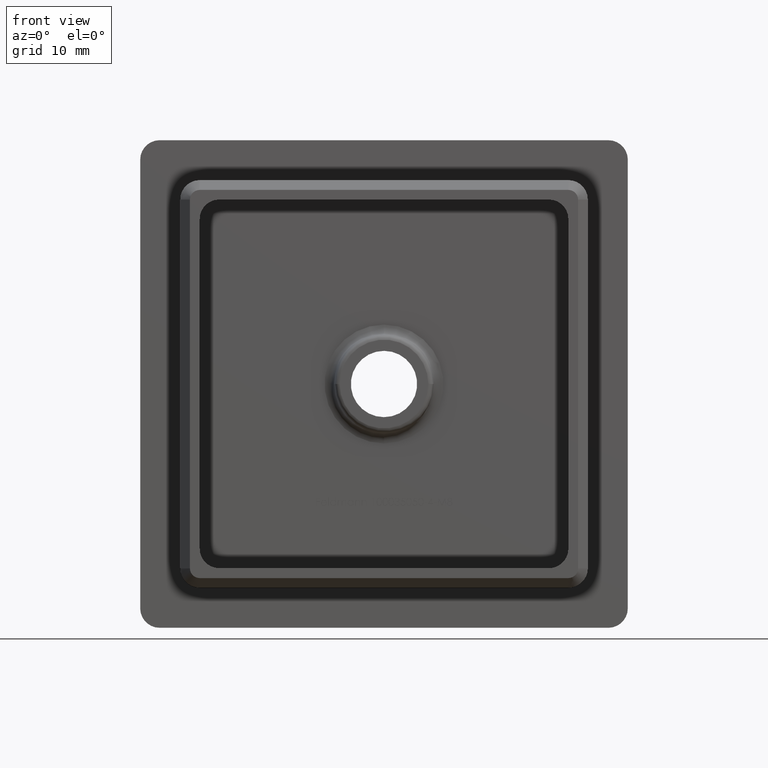
[diagram: clean part render]
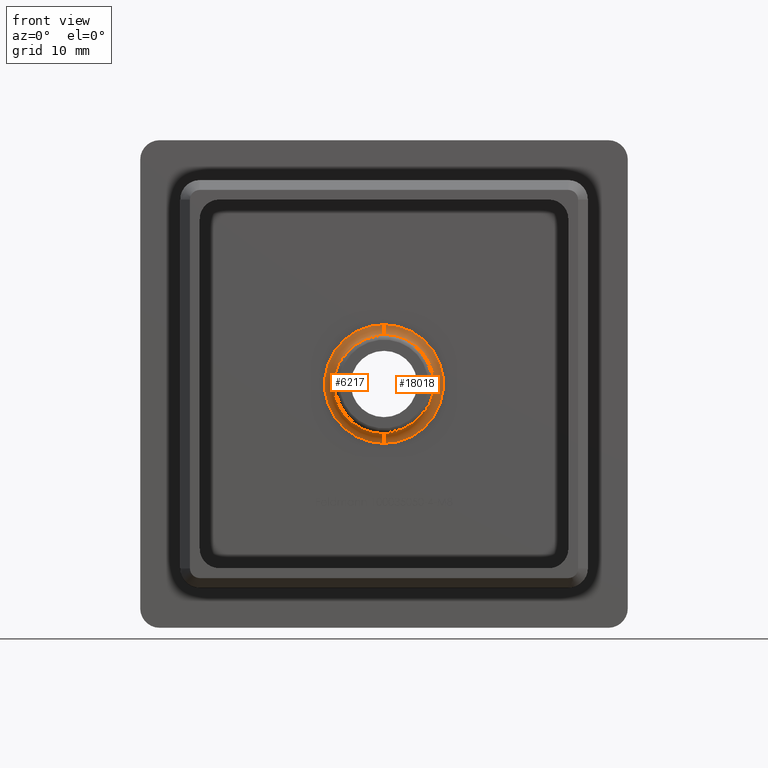
[diagram: same view with one multi-face feature highlighted, each face labeled with its STEP entity id]
A machine part, front view. The highlighted faces form ONE feature: a constant-radius fillet chain: 2 tangent blend faces with common blend radius 1 mm. The faces share edges in the B-rep.
Their STEP definitions:
[1] entity #18018 (Torus):
#938 = EDGE_CURVE ( 'NONE', #1986, #17897, #7621, .T. ) ;
#1333 = DIRECTION ( 'NONE',  ( -1.000000000000000000, -1.276755198502429000E-016, 0.0000000000000000000 ) ) ;
#1986 = VERTEX_POINT ( 'NONE', #14299 ) ;
#2324 = EDGE_CURVE ( 'NONE', #1986, #8318, #4037, .T. ) ;
#2381 = AXIS2_PLACEMENT_3D ( 'NONE', #15299, #4456, #4279 ) ;
#2715 = EDGE_CURVE ( 'NONE', #16364, #17897, #8482, .T. ) ;
#2895 = EDGE_LOOP ( 'NONE', ( #10539, #5956, #9376, #15460, #10478 ) ) ;
#3679 = CARTESIAN_POINT ( 'NONE',  ( 1.001573005813146500E-015, 0.0000000000000000000, -6.091308501069263100 ) ) ;
#3896 = DIRECTION ( 'NONE',  ( 1.000000000000000000, -0.0000000000000000000, 1.224646799147353200E-016 ) ) ;
#3976 = DIRECTION ( 'NONE',  ( 1.224646799147353500E-016, -1.000000000000000000, 0.0000000000000000000 ) ) ;
#4037 = CIRCLE ( 'NONE', #16227, 6.091308501069263100 ) ;
#4279 = DIRECTION ( 'NONE',  ( 0.0000000000000000000, 0.0000000000000000000, 1.000000000000000000 ) ) ;
#4456 = DIRECTION ( 'NONE',  ( -1.000000000000000000, 0.0000000000000000000, 0.0000000000000000000 ) ) ;
#4763 = AXIS2_PLACEMENT_3D ( 'NONE', #8202, #3976, #1333 ) ;
#5155 = CARTESIAN_POINT ( 'NONE',  ( 2.556028599677928600E-016, -1.000000000000000000, 1.984021111433010100E-016 ) ) ;
#5322 = CARTESIAN_POINT ( 'NONE',  ( 2.556028599677928600E-016, -0.9128442572523486300, 1.984021111433010100E-016 ) ) ;
#5956 = ORIENTED_EDGE ( 'NONE', *, *, #2324, .F. ) ;
#6000 = AXIS2_PLACEMENT_3D ( 'NONE', #16540, #3896, #9603 ) ;
#6158 = DIRECTION ( 'NONE',  ( 0.0000000000000000000, 0.0000000000000000000, 1.000000000000000000 ) ) ;
#6208 = DIRECTION ( 'NONE',  ( 0.0000000000000000000, 1.000000000000000000, 0.0000000000000000000 ) ) ;
#7442 = VERTEX_POINT ( 'NONE', #8001 ) ;
#7621 = CIRCLE ( 'NONE', #2381, 1.000000000000000000 ) ;
#8001 = CARTESIAN_POINT ( 'NONE',  ( 9.405736733958655000E-016, -0.9128442572523486300, -5.095113802977517800 ) ) ;
#8202 = CARTESIAN_POINT ( 'NONE',  ( 2.556028599677928600E-016, -0.9128442572523486300, 1.984021111433010100E-016 ) ) ;
#8318 = VERTEX_POINT ( 'NONE', #3679 ) ;
#8361 = FACE_OUTER_BOUND ( 'NONE', #2895, .T. ) ;
#8482 = CIRCLE ( 'NONE', #4763, 5.095113802977517800 ) ;
#8566 = TOROIDAL_SURFACE ( 'NONE', #8791, 6.091308501069263100, 1.000000000000000000 ) ;
#8791 = AXIS2_PLACEMENT_3D ( 'NONE', #5155, #6208, #6158 ) ;
#8885 = CARTESIAN_POINT ( 'NONE',  ( 2.556028599677929600E-016, -0.9128442572523486300, 5.095113802977517800 ) ) ;
#9376 = ORIENTED_EDGE ( 'NONE', *, *, #938, .T. ) ;
#9549 = DIRECTION ( 'NONE',  ( 0.0000000000000000000, 1.000000000000000000, 0.0000000000000000000 ) ) ;
#9603 = DIRECTION ( 'NONE',  ( 1.224646799147352500E-016, 0.0000000000000000000, -1.000000000000000000 ) ) ;
#9636 = EDGE_CURVE ( 'NONE', #8318, #7442, #12699, .T. ) ;
#9803 = CARTESIAN_POINT ( 'NONE',  ( 2.556028599677928600E-016, 0.0000000000000000000, 1.984021111433010100E-016 ) ) ;
#10425 = CIRCLE ( 'NONE', #11030, 5.095113802977517800 ) ;
#10478 = ORIENTED_EDGE ( 'NONE', *, *, #13619, .F. ) ;
#10539 = ORIENTED_EDGE ( 'NONE', *, *, #9636, .F. ) ;
#11030 = AXIS2_PLACEMENT_3D ( 'NONE', #5322, #13728, #12338 ) ;
#12338 = DIRECTION ( 'NONE',  ( -1.000000000000000000, -1.276755198502429000E-016, 0.0000000000000000000 ) ) ;
#12699 = CIRCLE ( 'NONE', #6000, 1.000000000000000000 ) ;
#13619 = EDGE_CURVE ( 'NONE', #7442, #16364, #10425, .T. ) ;
#13728 = DIRECTION ( 'NONE',  ( 1.224646799147353500E-016, -1.000000000000000000, 0.0000000000000000000 ) ) ;
#14299 = CARTESIAN_POINT ( 'NONE',  ( 2.556028599677928600E-016, 0.0000000000000000000, 6.091308501069263100 ) ) ;
#15294 = DIRECTION ( 'NONE',  ( 0.0000000000000000000, 0.0000000000000000000, 1.000000000000000000 ) ) ;
#15299 = CARTESIAN_POINT ( 'NONE',  ( 2.556028599677928600E-016, -1.000000000000000000, 6.091308501069263100 ) ) ;
#15460 = ORIENTED_EDGE ( 'NONE', *, *, #2715, .F. ) ;
#16227 = AXIS2_PLACEMENT_3D ( 'NONE', #9803, #9549, #15294 ) ;
#16364 = VERTEX_POINT ( 'NONE', #17597 ) ;
#16540 = CARTESIAN_POINT ( 'NONE',  ( 1.001573005813146500E-015, -1.000000000000000000, -6.091308501069263100 ) ) ;
#17597 = CARTESIAN_POINT ( 'NONE',  ( 5.095113802977517800, -0.9128442572523479700, 6.239714810107915300E-016 ) ) ;
#17897 = VERTEX_POINT ( 'NONE', #8885 ) ;
#18018 = ADVANCED_FACE ( 'NONE', ( #8361 ), #8566, .F. ) ;
[2] entity #6217 (Torus):
#236 = CARTESIAN_POINT ( 'NONE',  ( 2.556028599677928600E-016, -0.9128442572523486300, 1.984021111433010100E-016 ) ) ;
#938 = EDGE_CURVE ( 'NONE', #1986, #17897, #7621, .T. ) ;
#1067 = AXIS2_PLACEMENT_3D ( 'NONE', #236, #1661, #2866 ) ;
#1088 = TOROIDAL_SURFACE ( 'NONE', #4929, 6.091308501069263100, 1.000000000000000000 ) ;
#1103 = DIRECTION ( 'NONE',  ( 0.0000000000000000000, 0.0000000000000000000, 1.000000000000000000 ) ) ;
#1304 = AXIS2_PLACEMENT_3D ( 'NONE', #13814, #8097, #1103 ) ;
#1415 = ORIENTED_EDGE ( 'NONE', *, *, #5336, .F. ) ;
#1661 = DIRECTION ( 'NONE',  ( 1.224646799147353500E-016, -1.000000000000000000, 0.0000000000000000000 ) ) ;
#1986 = VERTEX_POINT ( 'NONE', #14299 ) ;
#2381 = AXIS2_PLACEMENT_3D ( 'NONE', #15299, #4456, #4279 ) ;
#2866 = DIRECTION ( 'NONE',  ( -1.000000000000000000, -1.276755198502429000E-016, 0.0000000000000000000 ) ) ;
#3153 = EDGE_CURVE ( 'NONE', #10815, #7442, #4910, .T. ) ;
#3679 = CARTESIAN_POINT ( 'NONE',  ( 1.001573005813146500E-015, 0.0000000000000000000, -6.091308501069263100 ) ) ;
#3896 = DIRECTION ( 'NONE',  ( 1.000000000000000000, -0.0000000000000000000, 1.224646799147353200E-016 ) ) ;
#4068 = EDGE_CURVE ( 'NONE', #17897, #10815, #11759, .T. ) ;
#4279 = DIRECTION ( 'NONE',  ( 0.0000000000000000000, 0.0000000000000000000, 1.000000000000000000 ) ) ;
#4456 = DIRECTION ( 'NONE',  ( -1.000000000000000000, 0.0000000000000000000, 0.0000000000000000000 ) ) ;
#4788 = AXIS2_PLACEMENT_3D ( 'NONE', #8711, #6090, #8950 ) ;
#4910 = CIRCLE ( 'NONE', #1067, 5.095113802977517800 ) ;
#4929 = AXIS2_PLACEMENT_3D ( 'NONE', #5287, #12485, #18181 ) ;
#5205 = ORIENTED_EDGE ( 'NONE', *, *, #938, .F. ) ;
#5287 = CARTESIAN_POINT ( 'NONE',  ( 2.556028599677928600E-016, -1.000000000000000000, 1.984021111433010100E-016 ) ) ;
#5336 = EDGE_CURVE ( 'NONE', #8318, #1986, #6448, .T. ) ;
#6000 = AXIS2_PLACEMENT_3D ( 'NONE', #16540, #3896, #9603 ) ;
#6090 = DIRECTION ( 'NONE',  ( 1.224646799147353500E-016, -1.000000000000000000, 0.0000000000000000000 ) ) ;
#6217 = ADVANCED_FACE ( 'NONE', ( #8671 ), #1088, .F. ) ;
#6448 = CIRCLE ( 'NONE', #1304, 6.091308501069263100 ) ;
#7353 = EDGE_LOOP ( 'NONE', ( #1415, #7887, #12658, #16667, #5205 ) ) ;
#7442 = VERTEX_POINT ( 'NONE', #8001 ) ;
#7621 = CIRCLE ( 'NONE', #2381, 1.000000000000000000 ) ;
#7887 = ORIENTED_EDGE ( 'NONE', *, *, #9636, .T. ) ;
#8001 = CARTESIAN_POINT ( 'NONE',  ( 9.405736733958655000E-016, -0.9128442572523486300, -5.095113802977517800 ) ) ;
#8097 = DIRECTION ( 'NONE',  ( 0.0000000000000000000, 1.000000000000000000, 0.0000000000000000000 ) ) ;
#8318 = VERTEX_POINT ( 'NONE', #3679 ) ;
#8671 = FACE_OUTER_BOUND ( 'NONE', #7353, .T. ) ;
#8711 = CARTESIAN_POINT ( 'NONE',  ( 2.556028599677928600E-016, -0.9128442572523486300, 1.984021111433010100E-016 ) ) ;
#8885 = CARTESIAN_POINT ( 'NONE',  ( 2.556028599677929600E-016, -0.9128442572523486300, 5.095113802977517800 ) ) ;
#8950 = DIRECTION ( 'NONE',  ( -1.000000000000000000, -1.276755198502429000E-016, 0.0000000000000000000 ) ) ;
#9603 = DIRECTION ( 'NONE',  ( 1.224646799147352500E-016, 0.0000000000000000000, -1.000000000000000000 ) ) ;
#9636 = EDGE_CURVE ( 'NONE', #8318, #7442, #12699, .T. ) ;
#10815 = VERTEX_POINT ( 'NONE', #17813 ) ;
#11759 = CIRCLE ( 'NONE', #4788, 5.095113802977517800 ) ;
#12485 = DIRECTION ( 'NONE',  ( 0.0000000000000000000, 1.000000000000000000, 0.0000000000000000000 ) ) ;
#12658 = ORIENTED_EDGE ( 'NONE', *, *, #3153, .F. ) ;
#12699 = CIRCLE ( 'NONE', #6000, 1.000000000000000000 ) ;
#13814 = CARTESIAN_POINT ( 'NONE',  ( 2.556028599677928600E-016, 0.0000000000000000000, 1.984021111433010100E-016 ) ) ;
#14299 = CARTESIAN_POINT ( 'NONE',  ( 2.556028599677928600E-016, 0.0000000000000000000, 6.091308501069263100 ) ) ;
#15299 = CARTESIAN_POINT ( 'NONE',  ( 2.556028599677928600E-016, -1.000000000000000000, 6.091308501069263100 ) ) ;
#16540 = CARTESIAN_POINT ( 'NONE',  ( 1.001573005813146500E-015, -1.000000000000000000, -6.091308501069263100 ) ) ;
#16667 = ORIENTED_EDGE ( 'NONE', *, *, #4068, .F. ) ;
#17813 = CARTESIAN_POINT ( 'NONE',  ( -5.095113802977517800, -0.9128442572523493000, 0.0000000000000000000 ) ) ;
#17897 = VERTEX_POINT ( 'NONE', #8885 ) ;
#18181 = DIRECTION ( 'NONE',  ( 0.0000000000000000000, 0.0000000000000000000, 1.000000000000000000 ) ) ;